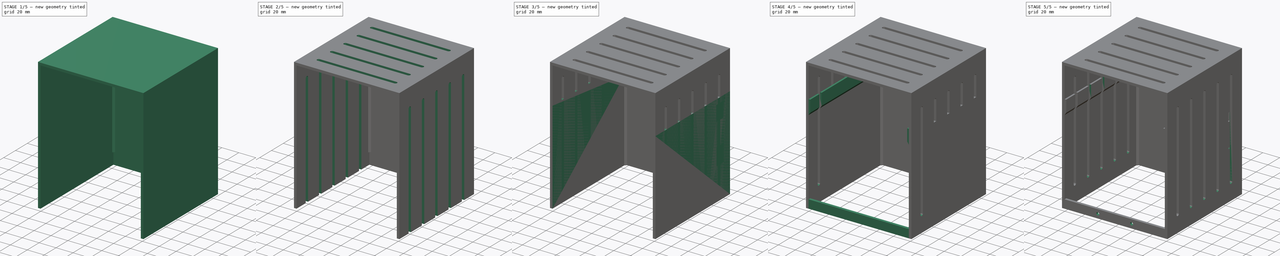
[diagram: build sequence overview — one tinted view per stage of 5, left to right]
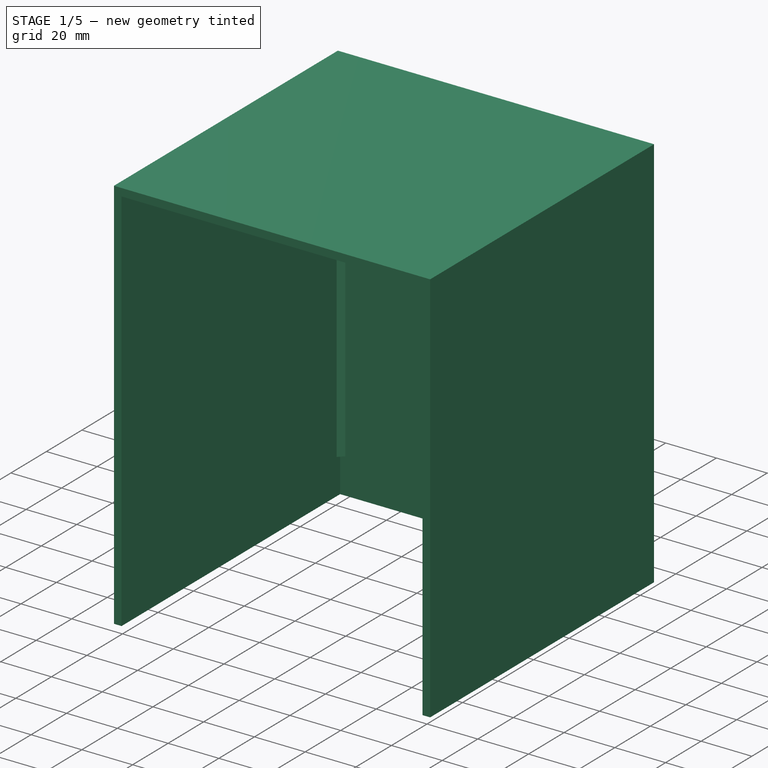
[diagram: stage 1 of 5 — iso view after this stage's code; geometry added in this stage tinted green]
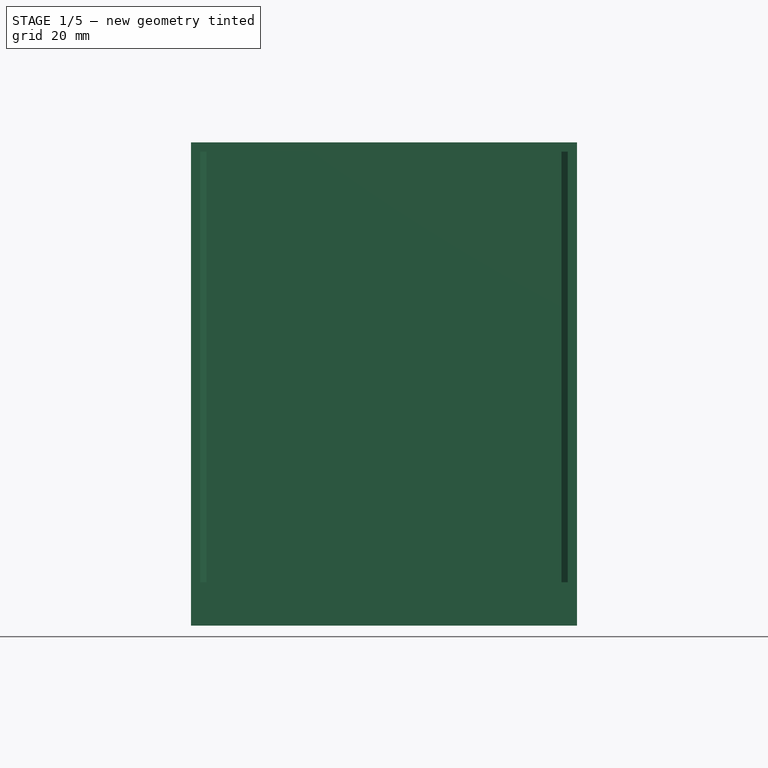
[diagram: stage 1 of 5 — front view after this stage's code; geometry added in this stage tinted green]
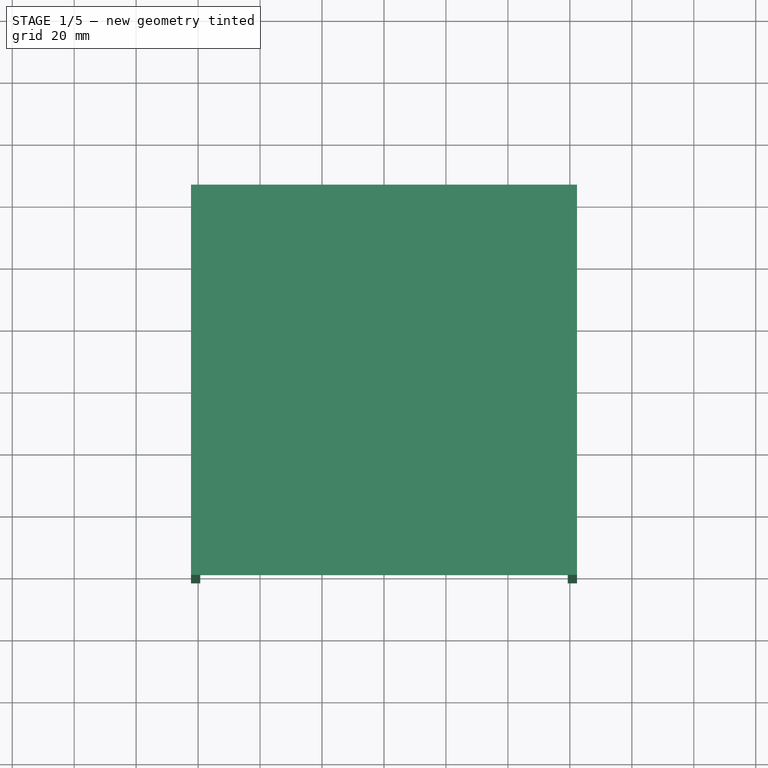
[diagram: stage 1 of 5 — top view after this stage's code; geometry added in this stage tinted green]
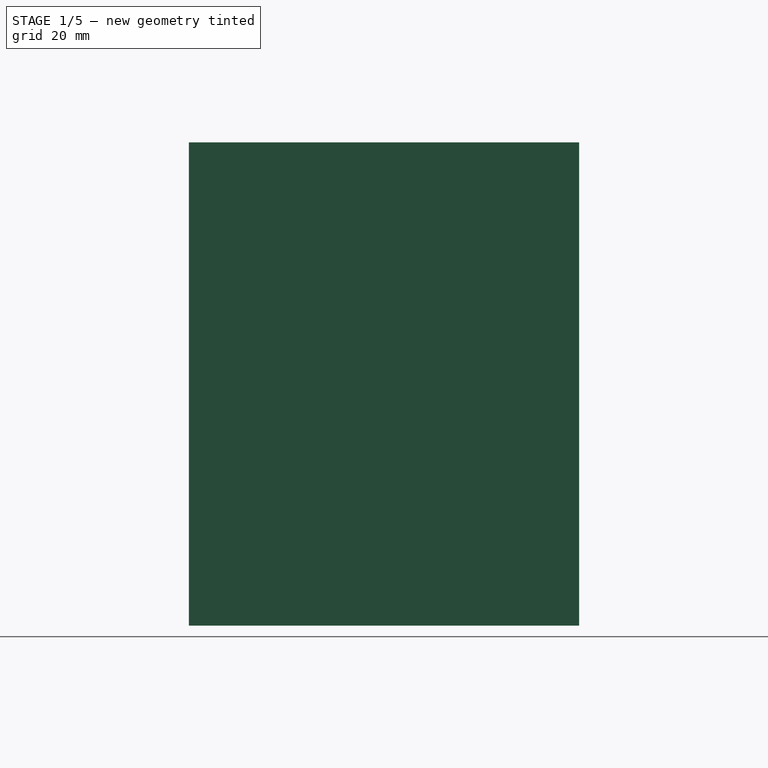
[diagram: stage 1 of 5 — right view after this stage's code; geometry added in this stage tinted green]
FCSTD DOCUMENT  (FreeCAD 1.0R39109 (Git))
Label: CaseCover
License: All rights reserved
LicenseURL: http://en.wikipedia.org/wiki/All_rights_reserved
objects: Sketcher::SketchObject×15, PartDesign::Pocket×8, PartDesign::Pad×7, PartDesign::Plane×6, PartDesign::LinearPattern×3, PartDesign::Mirrored×2, PartDesign::Body×2, App::Link×1, App::Part×1
note: 93 computed .brp shape members not serialized (recipe doc carries the construction recipe); baked Part::Feature solids carry a one-line shape summary decoded from their .brp
EXTERNAL_REF file=../Master Document.FCStd obj=Spreadsheet

FEATURE [Sketcher::SketchObject] Sketch006  label="Upper Case Wall Base Sketch"
  ArcFitTolerance = 1e-06
  AttachmentSupport = -> [XY_Plane002]
  FullyConstrained = true
  MakeInternals = false
  MapMode = 5
  expr: Constraints[16] = <<Monitor Chassis Parameters>>.GSCaseWallThickness
  expr: Constraints[17] = <<Monitor Chassis Parameters>>.GSCaseWallThickness
  expr: Constraints[18] = <<Monitor Chassis Parameters>>.GSCaseWallThickness
  expr: Constraints[5] = <<Monitor Chassis Parameters>>.GSCaseWallInnerDepth
  expr: Constraints[7] = 0.5 * <<Monitor Chassis Parameters>>.GSCaseWallInnerDepth
  expr: Constraints[8] = 0.5 * <<Monitor Chassis Parameters>>.GSCaseWallInnerWidth
  expr: Constraints[9] = <<Monitor Chassis Parameters>>.GSCaseWallInnerWidth
  sketch-geometry (8):
    g0: LineSegment StartX=62.3 StartY=64.5 StartZ=0 EndX=-62.3 EndY=64.5 EndZ=0
    g1: LineSegment StartX=-62.3 StartY=-61.5 StartZ=0 EndX=-59.3 EndY=-61.5 EndZ=0
    g2: LineSegment StartX=-59.3 StartY=-61.5 StartZ=0 EndX=-59.3 EndY=61.5 EndZ=0
    g3: LineSegment StartX=59.3 StartY=61.5 StartZ=0 EndX=59.3 EndY=-61.5 EndZ=0
    g4: LineSegment StartX=-62.3 StartY=64.5 StartZ=0 EndX=-62.3 EndY=-61.5 EndZ=0
    g5: LineSegment StartX=-59.3 StartY=61.5 StartZ=0 EndX=59.3 EndY=61.5 EndZ=0
    g6: LineSegment StartX=62.3 StartY=64.5 StartZ=0 EndX=62.3 EndY=-61.5 EndZ=0
    g7: LineSegment StartX=59.3 StartY=-61.5 StartZ=0 EndX=62.3 EndY=-61.5 EndZ=0
  constraints (24):
    c: Horizontal(g0)
    c: Coincident(g1,g2)
    c: Vertical(g2)
    c: Horizontal(g1)
    c: Vertical(g3)
    c: DistanceY(g1,g2) = 123
    c: Horizontal(g1,g3)
    c: DistanceY(g-1,g3) = 61.5
    c: DistanceX(g2,g-1) = 59.3
    c: DistanceX(g2,g3) = 118.6
    c: Coincident(g4,g0)
    c: Coincident(g4,g1)
    c: Vertical(g4)
    c: Coincident(g5,g2)
    c: Coincident(g5,g3)
    c: Horizontal(g5)
    c: DistanceX(g0,g2) = 3
    c: DistanceY(g2,g0) = 3
    c: DistanceX(g3,g0) = 3
    c: Coincident(g6,g0)
    c: Vertical(g6)
    c: Coincident(g7,g3)
    c: Coincident(g7,g6)
    c: Horizontal(g3,g6)
FEATURE [PartDesign::Pad] Pad004  label="Upper Case Wall Base Pad"
  Direction = (0,0,1)
  Length = 153
  Length2 = 10
  Profile = -> Sketch006
  ReferenceAxis = -> Sketch006 [N_Axis]
  Suppressed = false
  Type = 0
  expr: Length = <<Monitor Chassis Parameters>>.GSUpperCaseHeight
FEATURE [PartDesign::Plane] DatumPlane002  label="Case Top DatumPlane"
  AttachmentOffset = pos=(0,0,153) rot=(0,0,1;0rad)
  AttachmentSupport = -> [XY_Plane002]
  Length = 149.66
  MapMode = 5
  Placement = pos=(0,0,153) rot=(0,0,1;0rad)
  ResizeMode = 0
  Width = 151.06
  expr: .AttachmentOffset.Base.z = <<Monitor Chassis Parameters>>.GSUpperCaseHeight
FEATURE [Sketcher::SketchObject] Sketch007  label="Case Cover Top Sketch"
  ArcFitTolerance = 1e-06
  AttachmentSupport = -> [DatumPlane002]
  FullyConstrained = true
  MakeInternals = false
  MapMode = 5
  Placement = pos=(0,0,153) rot=(0,0,1;0rad)
  expr: Constraints[10] = <<Monitor Chassis Parameters>>.GSCaseWallInnerDepth + <<Monitor Chassis Parameters>>.GSCaseWallThickness
  expr: Constraints[11] = 0.5 * (<<Monitor Chassis Parameters>>.GSCaseWallInnerDepth + 2 * <<Monitor Chassis Parameters>>.GSCaseWallThickness)
  expr: Constraints[8] = <<Monitor Chassis Parameters>>.GSCaseWallInnerWidth + 2 * <<Monitor Chassis Parameters>>.GSCaseWallThickness
  expr: Constraints[9] = 0.5 * <<Monitor Chassis Parameters>>.GSCaseWallInnerWidth + <<Monitor Chassis Parameters>>.GSCaseWallThickness
  sketch-geometry (4):
    g0: LineSegment StartX=-62.3 StartY=64.5 StartZ=0 EndX=-62.3 EndY=-61.5 EndZ=0
    g1: LineSegment StartX=-62.3 StartY=-61.5 StartZ=0 EndX=62.3 EndY=-61.5 EndZ=0
    g2: LineSegment StartX=62.3 StartY=-61.5 StartZ=0 EndX=62.3 EndY=64.5 EndZ=0
    g3: LineSegment StartX=62.3 StartY=64.5 StartZ=0 EndX=-62.3 EndY=64.5 EndZ=0
  constraints (12):
    c: Coincident(g0,g1)
    c: Coincident(g1,g2)
    c: Coincident(g2,g3)
    c: Coincident(g3,g0)
    c: Vertical(g0)
    c: Vertical(g2)
    c: Horizontal(g1)
    c: Horizontal(g3)
    c: DistanceX(g0,g2) = 124.6
    c: DistanceX(g0,g-1) = 62.3
    c: DistanceY(g0,g0) = 126
    c: DistanceY(g-1,g0) = 64.5
FEATURE [Sketcher::SketchObject] Sketch008  label="Left Upper Case Corner Gusset Sketch"
  ArcFitTolerance = 1e-06
  AttachmentSupport = -> [DatumPlane002]
  FullyConstrained = true
  MakeInternals = false
  MapMode = 5
  Placement = pos=(0,0,153) rot=(0,0,1;0rad)
  expr: Constraints[6] = 0.5 * <<Monitor Chassis Parameters>>.GSCaseWallInnerWidth
  expr: Constraints[7] = 0.5 * <<Monitor Chassis Parameters>>.GSCaseWallInnerDepth
  sketch-geometry (3):
    g0: LineSegment StartX=-59.3 StartY=59.5 StartZ=0 EndX=-57.3 EndY=61.5 EndZ=0
    g1: LineSegment StartX=-57.3 StartY=61.5 StartZ=0 EndX=-59.3 EndY=61.5 EndZ=0
    g2: LineSegment StartX=-59.3 StartY=61.5 StartZ=0 EndX=-59.3 EndY=59.5 EndZ=0
  constraints (9):
    c: Coincident(g1,g0)
    c: Horizontal(g1)
    c: Coincident(g2,g1)
    c: Coincident(g2,g0)
    c: Vertical(g2)
    c: Angle(g0) = 0.785398
    c: DistanceX(g1,g-1) = 59.3
    c: DistanceY(g-1,g1) = 61.5
    c: DistanceY(g0,g1) = 2
FEATURE [PartDesign::Pad] Pad005  label="Left Upper Case Corner Gusset Pad"
  BaseFeature = -> Pad004
  Direction = (0,0,1)
  Length = 139
  Length2 = 10
  Profile = -> Sketch008
  ReferenceAxis = -> Sketch008 [N_Axis]
  Reversed = true
  Suppressed = false
  Type = 0
  expr: Length = <<Monitor Chassis Parameters>>.GSUpperCaseHeight - <<Monitor Chassis Parameters>>.GSCaseConnectionWallHeight
FEATURE [PartDesign::Mirrored] Mirrored001  label="Right Upper Case Corner Gusset Mirrored"
  BaseFeature = -> Pad005
  MirrorPlane = -> Sketch008 [V_Axis]
  Originals = -> [Pad005]
  Suppressed = false
  TransformMode = 0
FEATURE [PartDesign::Pad] Pad006  label="Case Cover Top Pad"
  BaseFeature = -> Mirrored001
  Direction = (0,0,1)
  Length = 3
  Length2 = 10
  Profile = -> Sketch007
  ReferenceAxis = -> Sketch007 [N_Axis]
  Suppressed = false
  Type = 0
  expr: Length = <<Monitor Chassis Parameters>>.GSCaseWallThickness
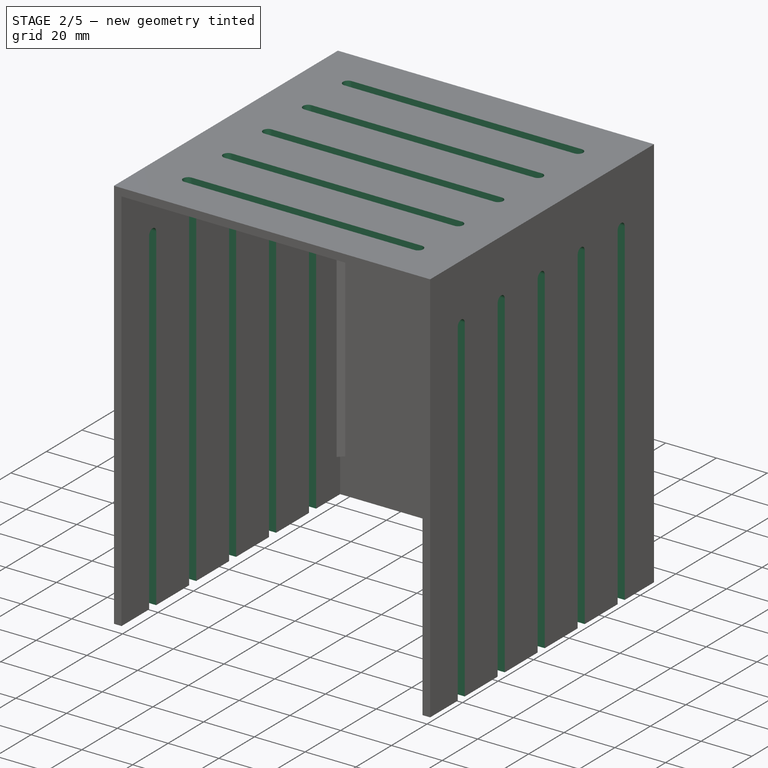
[diagram: stage 2 of 5 — iso view after this stage's code; geometry added in this stage tinted green]
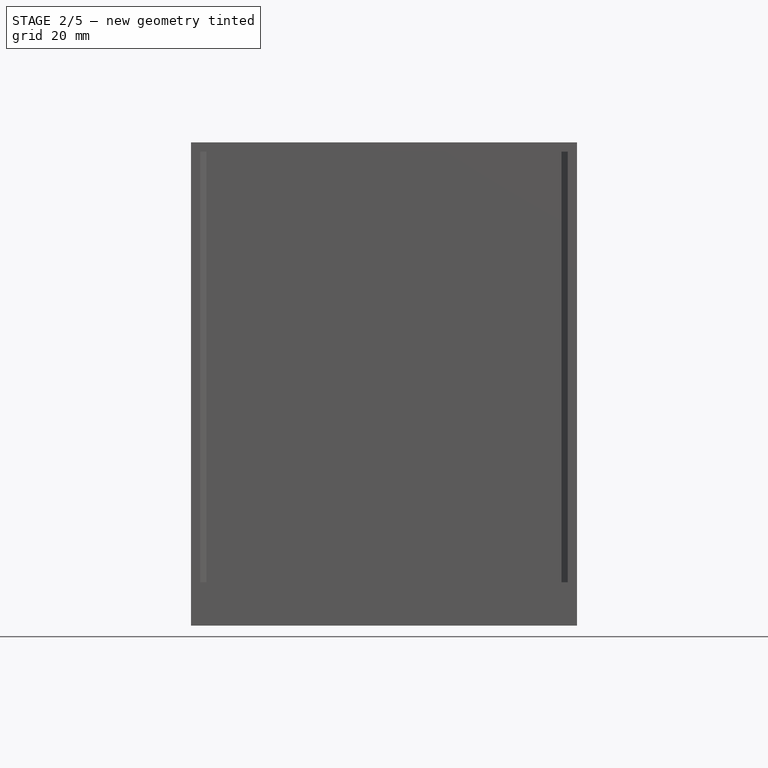
[diagram: stage 2 of 5 — front view after this stage's code; geometry added in this stage tinted green]
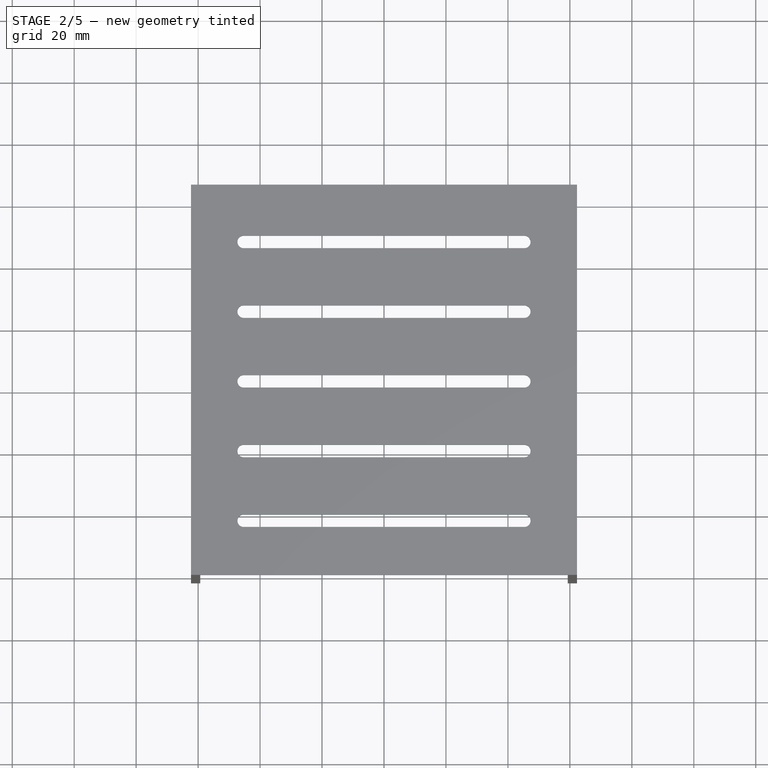
[diagram: stage 2 of 5 — top view after this stage's code; geometry added in this stage tinted green]
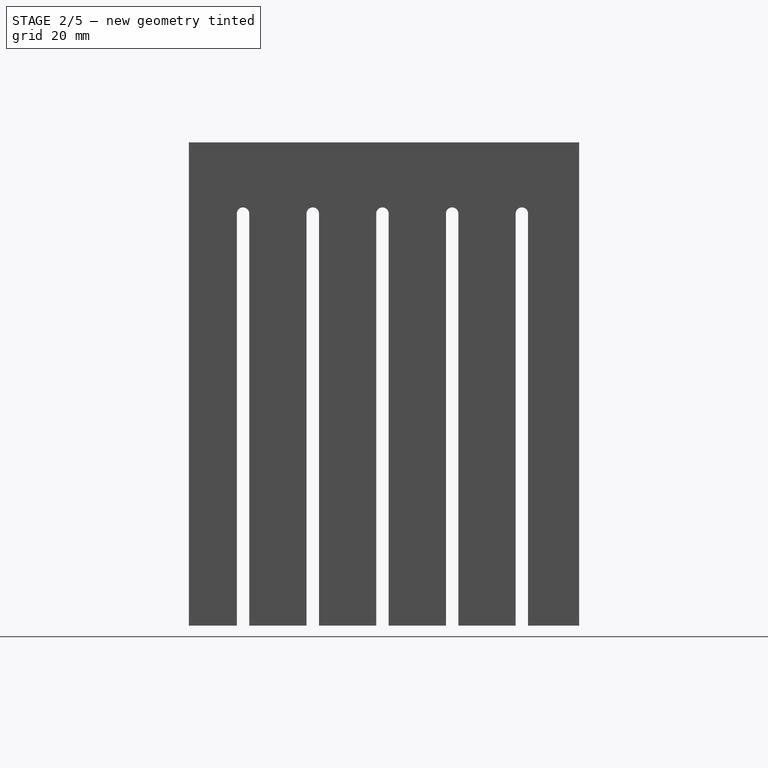
[diagram: stage 2 of 5 — right view after this stage's code; geometry added in this stage tinted green]
FEATURE [PartDesign::Plane] DatumPlane004  label="Upper Cover Right Side DatumPlane"
  AttachmentOffset = pos=(0,0,62.3) rot=(0,0,1;0rad)
  AttachmentSupport = -> [YZ_Plane002]
  Length = 161.319
  MapMode = 5
  Placement = pos=(62.3,0,0) rot=(0.57735,0.57735,0.57735;2.0944rad)
  ResizeMode = 0
  Width = 282.833
  expr: .AttachmentOffset.Base.z = 0.5 * <<Monitor Chassis Parameters>>.GSCaseWallInnerWidth + <<Monitor Chassis Parameters>>.GSCaseWallThickness
FEATURE [Sketcher::SketchObject] Sketch010  label="Upper Cover Cooling Slot Base Sketch"
  ArcFitTolerance = 1e-06
  AttachmentSupport = -> [DatumPlane004]
  FullyConstrained = false
  MakeInternals = false
  MapMode = 5
  Placement = pos=(62.3,0,0) rot=(0.57735,0.57735,0.57735;2.0944rad)
  expr: Constraints[12] = <<Monitor Chassis Parameters>>.GSTowerSideCoolingSlotOffsetFromEdge
  expr: Constraints[4] = <<Monitor Chassis Parameters>>.GSUpperCaseHeight - <<Monitor Chassis Parameters>>.GSTowerCoolingSlotEndOffset
  expr: Constraints[5] = <<Monitor Chassis Parameters>>.GSTowerCoolingSlotWidth
  sketch-geometry (4):
    g0: LineSegment StartX=-46 StartY=-89.5276 StartZ=0 EndX=-46 EndY=133 EndZ=0
    g1: LineSegment StartX=-42 StartY=133 StartZ=0 EndX=-42 EndY=-89.5276 EndZ=0
    g2: ArcOfCircle CenterX=-44 CenterY=-89.5276 CenterZ=0 NormalX=0 NormalY=0 NormalZ=1 AngleXU=0 Radius=2 StartAngle=3.14159 EndAngle=6.28319
    g3: ArcOfCircle CenterX=-44 CenterY=133 CenterZ=0 NormalX=0 NormalY=0 NormalZ=1 AngleXU=0 Radius=2 StartAngle=0 EndAngle=3.14159
  constraints (13):
    c: Vertical(g0)
    c: Vertical(g1)
    c: Horizontal(g0,g1)
    c: Horizontal(g1,g0)
    c: DistanceY(g-1,g1) = 133
    c: DistanceX(g0,g1) = 4
    c: Coincident(g2,g0)
    c: Coincident(g2,g1)
    c: Horizontal(g2,g1)
    c: Coincident(g3,g0)
    c: Coincident(g3,g1)
    c: Horizontal(g3,g1)
    c: DistanceX(g1,g-1) = 42
FEATURE [PartDesign::Pocket] Pocket002  label="Upper Cover Cooling Slot Base Pocket"
  BaseFeature = -> Pad006
  Direction = (-1,0,0)
  Length = 5
  Length2 = 5
  Profile = -> Sketch010
  ReferenceAxis = -> Sketch010 [N_Axis]
  Suppressed = false
  Type = 1
FEATURE [PartDesign::LinearPattern] LinearPattern001  label="Upper Cover Cooling Slot Base LinearPattern"
  BaseFeature = -> Pocket002
  Direction = -> Sketch010 [H_Axis]
  Length = 90
  Mode = 0
  Occurrences = 5
  Offset = 22.5
  Originals = -> [Pocket002]
  Suppressed = false
  TransformMode = 0
FEATURE [Sketcher::SketchObject] Sketch011  label="Tower Top Cooling Slots Sketch"
  ArcFitTolerance = 1e-06
  AttachmentSupport = -> [Pad006]
  FullyConstrained = true
  MakeInternals = false
  MapMode = 5
  Placement = pos=(0,0,156) rot=(0,0,1;0rad)
  expr: Constraints[10] = 0.5 * <<Monitor Chassis Parameters>>.GSCaseWallInnerWidth - <<Monitor Chassis Parameters>>.GSTowerTopCoolingSlotOffsetFromEdge
  expr: Constraints[11] = 0.5 * <<Monitor Chassis Parameters>>.GSCaseWallInnerWidth - <<Monitor Chassis Parameters>>.GSTowerTopCoolingSlotOffsetFromEdge
  expr: Constraints[12] = <<Monitor Chassis Parameters>>.GSTowerCoolingSlotWidth
  expr: Constraints[13] = <<Monitor Chassis Parameters>>.GSTowerSideCoolingSlotOffsetFromEdge
  sketch-geometry (4):
    g0: LineSegment StartX=-45.3 StartY=-42 StartZ=0 EndX=45.3 EndY=-42 EndZ=0
    g1: LineSegment StartX=45.3 StartY=-46 StartZ=0 EndX=-45.3 EndY=-46 EndZ=0
    g2: ArcOfCircle CenterX=-45.3 CenterY=-44 CenterZ=0 NormalX=0 NormalY=0 NormalZ=1 AngleXU=0 Radius=2 StartAngle=1.5708 EndAngle=4.71239
    g3: ArcOfCircle CenterX=45.3 CenterY=-44 CenterZ=0 NormalX=0 NormalY=0 NormalZ=1 AngleXU=0 Radius=2 StartAngle=4.71239 EndAngle=7.85398
  constraints (14):
    c: Horizontal(g0)
    c: Horizontal(g1)
    c: Vertical(g0,g1)
    c: Vertical(g0,g1)
    c: Coincident(g2,g0)
    c: Coincident(g2,g1)
    c: Coincident(g3,g0)
    c: Coincident(g3,g1)
    c: Vertical(g0,g3)
    c: Vertical(g0,g2)
    c: DistanceX(g-1,g1) = 45.3
    c: DistanceX(g0,g-1) = 45.3
    c: DistanceY(g1,g0) = 4
    c: DistanceY(g0,g-1) = 42
FEATURE [PartDesign::Pocket] Pocket003  label="Case Top Cooling Slots Pocket"
  BaseFeature = -> LinearPattern001
  Direction = (0,0,-1)
  Length = 4
  Length2 = 5
  Profile = -> Sketch011
  ReferenceAxis = -> Sketch011 [N_Axis]
  Suppressed = false
  Type = 0
  expr: Length = <<Monitor Chassis Parameters>>.GSTowerFloorThickness
FEATURE [PartDesign::LinearPattern] LinearPattern002  label="Case Top Cooling Slots LinearPattern"
  BaseFeature = -> Pocket003
  Direction = -> Y_Axis002
  Length = 90
  Mode = 0
  Occurrences = 5
  Offset = 22.5
  Originals = -> [Pocket003]
  Suppressed = false
  TransformMode = 0
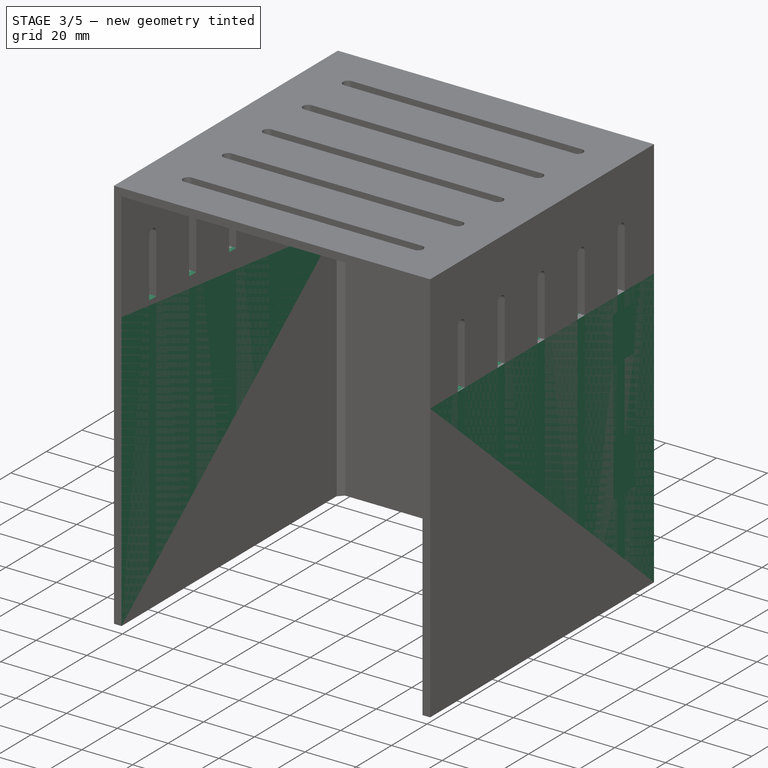
[diagram: stage 3 of 5 — iso view after this stage's code; geometry added in this stage tinted green]
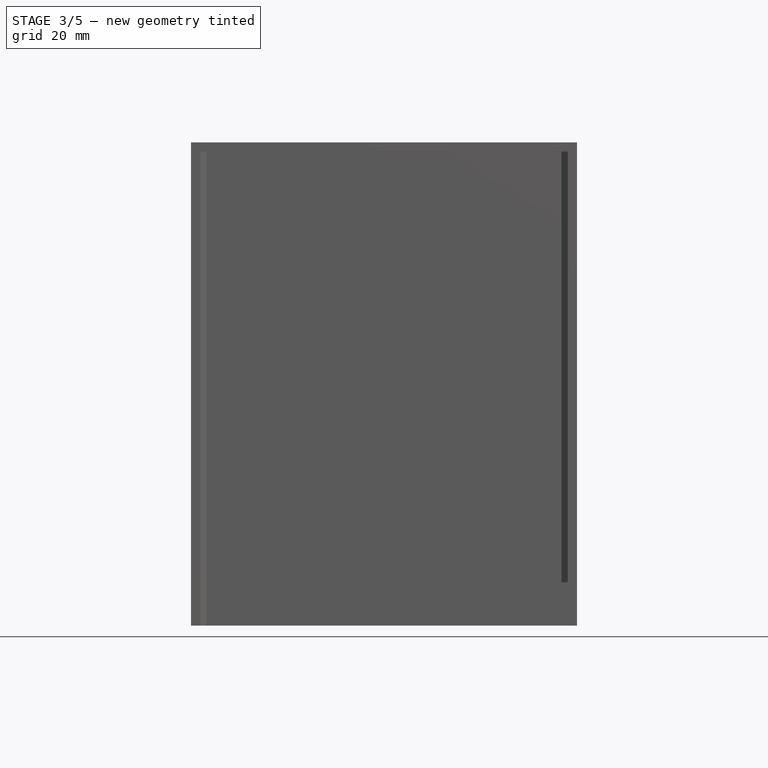
[diagram: stage 3 of 5 — front view after this stage's code; geometry added in this stage tinted green]
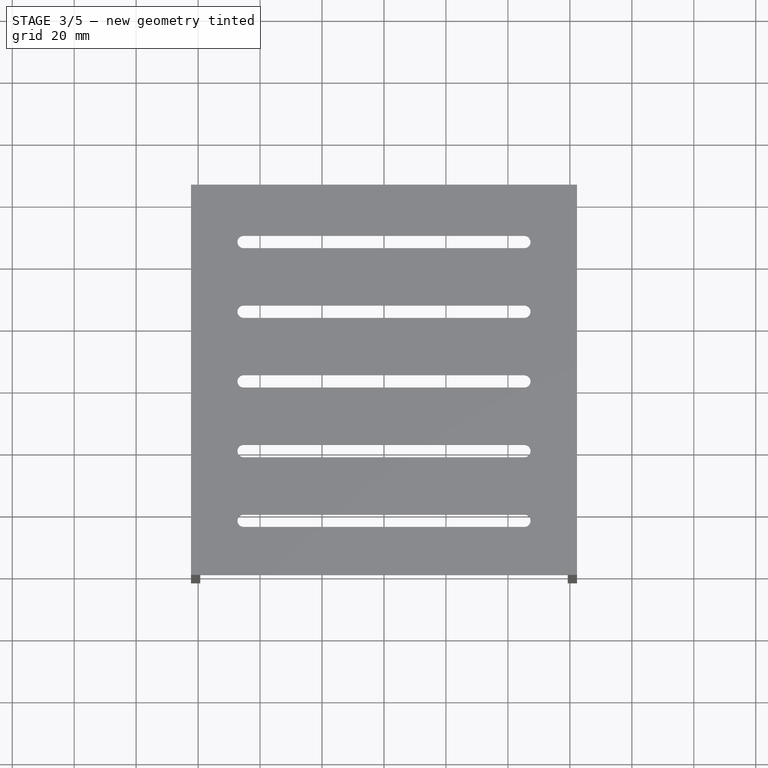
[diagram: stage 3 of 5 — top view after this stage's code; geometry added in this stage tinted green]
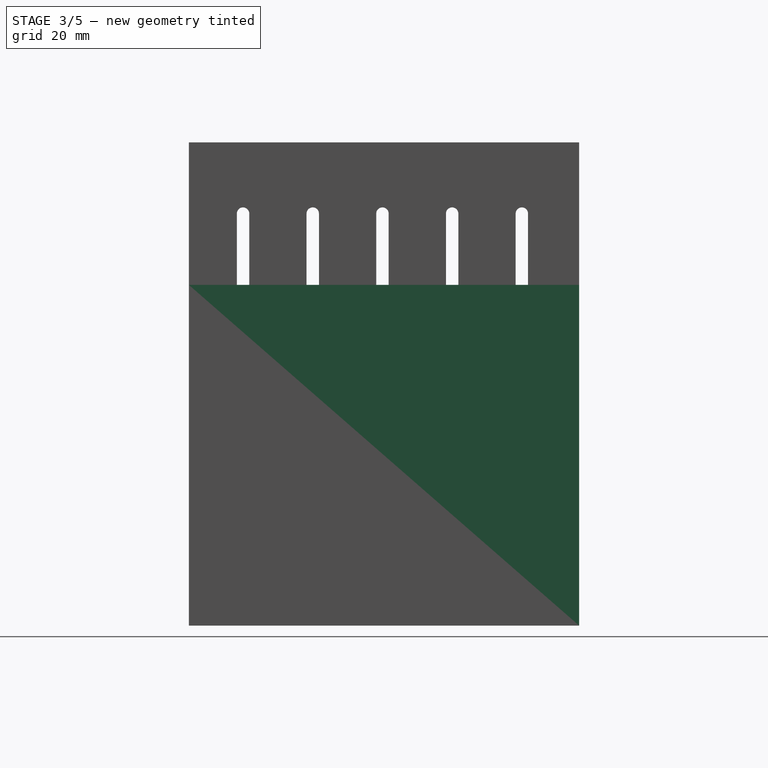
[diagram: stage 3 of 5 — right view after this stage's code; geometry added in this stage tinted green]
FEATURE [App::Link] Link  label="Monitor Chassis Parameters"
  LinkedObject = -> <external ../Master Document.FCStd>#Spreadsheet
FEATURE [Sketcher::SketchObject] Sketch  label="Lower Case Wall Base Sketch"
  ArcFitTolerance = 1e-06
  AttachmentSupport = -> [XY_Plane001]
  FullyConstrained = true
  MakeInternals = false
  MapMode = 5
  expr: Constraints[11] = 0.5 * <<Monitor Chassis Parameters>>.GSCaseWallInnerDepth
  expr: Constraints[12] = <<Monitor Chassis Parameters>>.GSCaseWallInnerWidth
  expr: Constraints[13] = <<Monitor Chassis Parameters>>.GSCaseWallThickness
  expr: Constraints[14] = 0.5 * <<Monitor Chassis Parameters>>.GSCaseWallInnerWidth
  expr: Constraints[23] = <<Monitor Chassis Parameters>>.GSCaseWallThickness
  expr: Constraints[24] = <<Monitor Chassis Parameters>>.GSCaseWallThickness
  expr: Constraints[9] = <<Monitor Chassis Parameters>>.GSCaseWallInnerDepth
  sketch-geometry (8):
    g0: LineSegment StartX=62.3 StartY=64.5 StartZ=0 EndX=-62.3 EndY=64.5 EndZ=0
    g1: LineSegment StartX=-62.3 StartY=64.5 StartZ=0 EndX=-62.3 EndY=-61.5 EndZ=0
    g2: LineSegment StartX=-62.3 StartY=-61.5 StartZ=0 EndX=-59.3 EndY=-61.5 EndZ=0
    g3: LineSegment StartX=-59.3 StartY=-61.5 StartZ=0 EndX=-59.3 EndY=61.5 EndZ=0
    g4: LineSegment StartX=59.3 StartY=61.5 StartZ=0 EndX=59.3 EndY=-61.5 EndZ=0
    g5: LineSegment StartX=59.3 StartY=-61.5 StartZ=0 EndX=62.3 EndY=-61.5 EndZ=0
    g6: LineSegment StartX=-59.3 StartY=61.5 StartZ=0 EndX=59.3 EndY=61.5 EndZ=0
    g7: LineSegment StartX=62.3 StartY=-61.5 StartZ=0 EndX=62.3 EndY=64.5 EndZ=0
  constraints (26):
    c: Horizontal(g0)
    c: Coincident(g1,g2)
    c: Coincident(g2,g3)
    c: Vertical(g1)
    c: Vertical(g3)
    c: Horizontal(g2)
    c: Coincident(g4,g5)
    c: Horizontal(g5)
    c: Vertical(g4)
    c: DistanceY(g2,g3) = 123
    c: Horizontal(g2,g4)
    c: DistanceY(g-1,g4) = 61.5
    c: DistanceX(g3,g4) = 118.6
    c: DistanceX(g0,g3) = 3
    c: DistanceX(g-1,g4) = 59.3
    c: Vertical(g0,g1)
    c: Horizontal(g0,g1)
    c: Coincident(g6,g3)
    c: Coincident(g6,g4)
    c: Horizontal(g6)
    c: PointOnObject(g7,g5)
    c: Coincident(g7,g0)
    c: Vertical(g7)
    c: DistanceY(g4,g0) = 3
    c: DistanceX(g4,g0) = 3
    c: Vertical(g7,g5)
FEATURE [PartDesign::Pad] Pad  label="Lower Case Wall Base Pad"
  Direction = (0,0,1)
  Length = 110
  Length2 = 10
  Profile = -> Sketch
  ReferenceAxis = -> Sketch [N_Axis]
  Suppressed = false
  Type = 0
  expr: Length = <<Monitor Chassis Parameters>>.GSLowerCaseHeight
FEATURE [Sketcher::SketchObject] Sketch001  label="Left Lower Case Corner Gusset Sketch"
  ArcFitTolerance = 1e-06
  AttachmentSupport = -> [XY_Plane001]
  FullyConstrained = true
  MakeInternals = false
  MapMode = 5
  expr: Constraints[6] = 0.5 * <<Monitor Chassis Parameters>>.GSCaseWallInnerWidth
  expr: Constraints[7] = 0.5 * <<Monitor Chassis Parameters>>.GSCaseWallInnerDepth
  expr: Constraints[8] = <<Monitor Chassis Parameters>>.GSCaseWallCornerGussetLength
  sketch-geometry (3):
    g0: LineSegment StartX=-59.3 StartY=59.5 StartZ=0 EndX=-57.3 EndY=61.5 EndZ=0
    g1: LineSegment StartX=-57.3 StartY=61.5 StartZ=0 EndX=-59.3 EndY=61.5 EndZ=0
    g2: LineSegment StartX=-59.3 StartY=61.5 StartZ=0 EndX=-59.3 EndY=59.5 EndZ=0
  constraints (9):
    c: Coincident(g1,g0)
    c: Horizontal(g1)
    c: Coincident(g2,g1)
    c: Coincident(g2,g0)
    c: Vertical(g2)
    c: Angle(g0) = 0.785398
    c: DistanceX(g1,g-1) = 59.3
    c: DistanceY(g-1,g1) = 61.5
    c: DistanceY(g0,g1) = 2
FEATURE [PartDesign::Pad] Pad001  label="Left Lower Case Corner Gusset Pad"
  BaseFeature = -> Pad
  Direction = (0,0,1)
  Length = 96
  Length2 = 10
  Profile = -> Sketch001
  ReferenceAxis = -> Sketch001 [N_Axis]
  Suppressed = false
  Type = 0
  expr: Length = <<Monitor Chassis Parameters>>.GSLowerCaseHeight - <<Monitor Chassis Parameters>>.GSCaseConnectionWallHeight
FEATURE [PartDesign::Body] Body  label="Lower Case Cover Body"
  AllowCompound = false
  Group = -> [Sketch,Pad,Sketch001,Pad001,Mirrored,DatumPlane,DatumPlane001,Sketch003,Pad002,Sketch004,Pad003,DatumPlane003,Sketch009,Pocket001,LinearPattern,Sketch012,Pocket,Sketch013,Pocket004,Sketch014,Pocket005]
  Origin = -> Origin001
  Placement = pos=(1.4,0,0) rot=(0,0,1;0rad)
  Tip = -> Pocket005
FEATURE [PartDesign::Plane] DatumPlane005  label="Case Top Back DatumPlane"
  AttachmentOffset = pos=(0,0,-64.5) rot=(0,0,1;0rad)
  AttachmentSupport = -> [XZ_Plane002]
  Length = 159.723
  MapMode = 5
  Placement = pos=(0,64.5,-1.43e-14) rot=(1,0,0;1.5708rad)
  ResizeMode = 0
  Width = 282.636
  expr: .AttachmentOffset.Base.z = -(0.5 * <<Monitor Chassis Parameters>>.GSCaseWallInnerDepth + <<Monitor Chassis Parameters>>.GSCaseWallThickness)
FEATURE [Sketcher::SketchObject] Sketch015  label="Case Top Back Access Holes Sketch"
  ArcFitTolerance = 1e-06
  AttachmentSupport = -> [DatumPlane005]
  FullyConstrained = false
  MakeInternals = false
  MapMode = 5
  Placement = pos=(0,64.5,-1.43e-14) rot=(1,0,0;1.5708rad)
  sketch-geometry (1):
    g0: Circle CenterX=-45.0354 CenterY=71.0638 CenterZ=0 NormalX=0 NormalY=0 NormalZ=1 AngleXU=0 Radius=2
  constraints (1):
    c: Diameter(g0) = 4
FEATURE [PartDesign::Pocket] Pocket006  label="Case Top Back Access Holes Pocket"
  BaseFeature = -> LinearPattern002
  Direction = (0,1,-2e-16)
  Length = 5
  Length2 = 5
  Profile = -> Sketch015
  ReferenceAxis = -> Sketch015 [N_Axis]
  Suppressed = false
  Type = 0
FEATURE [Sketcher::SketchObject] Sketch016  label="Case Top Right Side Access Holes Sketch"
  ArcFitTolerance = 1e-06
  AttachmentSupport = -> [DatumPlane004]
  FullyConstrained = false
  MakeInternals = false
  MapMode = 5
  Placement = pos=(62.3,0,0) rot=(0.57735,0.57735,0.57735;2.0944rad)
  sketch-geometry (8):
    g0: LineSegment StartX=41.6164 StartY=58.5839 StartZ=0 EndX=41.6164 EndY=38.2414 EndZ=0
    g1: LineSegment StartX=41.6164 StartY=38.2414 StartZ=0 EndX=53.9113 EndY=38.2414 EndZ=0
    g2: LineSegment StartX=53.9113 StartY=38.2414 StartZ=0 EndX=53.9113 EndY=58.5839 EndZ=0
    g3: LineSegment StartX=53.9113 StartY=58.5839 StartZ=0 EndX=41.6164 EndY=58.5839 EndZ=0
    g4: LineSegment StartX=41.1693 StartY=103.963 StartZ=0 EndX=41.1693 EndY=85.8562 EndZ=0
    g5: LineSegment StartX=41.1693 StartY=85.8562 StartZ=0 EndX=53.2407 EndY=85.8562 EndZ=0
    g6: LineSegment StartX=53.2407 StartY=85.8562 StartZ=0 EndX=53.2407 EndY=103.963 EndZ=0
    g7: LineSegment StartX=53.2407 StartY=103.963 StartZ=0 EndX=41.1693 EndY=103.963 EndZ=0
  constraints (16):
    c: Coincident(g0,g1)
    c: Coincident(g1,g2)
    c: Coincident(g2,g3)
    c: Coincident(g3,g0)
    c: Vertical(g0)
    c: Vertical(g2)
    c: Horizontal(g1)
    c: Horizontal(g3)
    c: Coincident(g4,g5)
    c: Coincident(g5,g6)
    c: Coincident(g6,g7)
    c: Coincident(g7,g4)
    c: Vertical(g4)
    c: Vertical(g6)
    c: Horizontal(g5)
    c: Horizontal(g7)
FEATURE [PartDesign::Pocket] Pocket008  label="Case Top Right Side Access Holes Pocket"
  BaseFeature = -> Pocket006
  Direction = (-1,0,0)
  Length = 5
  Length2 = 5
  Profile = -> Sketch016
  ReferenceAxis = -> Sketch016 [N_Axis]
  Suppressed = false
  Type = 0
FEATURE [PartDesign::Body] Body001  label="Upper Case Cover Body"
  AllowCompound = false
  Group = -> [Sketch006,Pad004,DatumPlane002,Sketch007,Sketch008,Pad005,Mirrored001,Pad006,DatumPlane004,Sketch010,Pocket002,LinearPattern001,Sketch011,Pocket003,LinearPattern002,DatumPlane005,Sketch015,Pocket006,Sketch016,Pocket008]
  Origin = -> Origin002
  Placement = pos=(1.4,0,110.1) rot=(0,0,1;0rad)
  Tip = -> Pocket008
FEATURE [App::Part] Part  label="Case Cover Part"
  Group = -> [Body,Body001]
  Origin = -> Origin
  Placement = pos=(0.3,0,0) rot=(0,0,1;0rad)
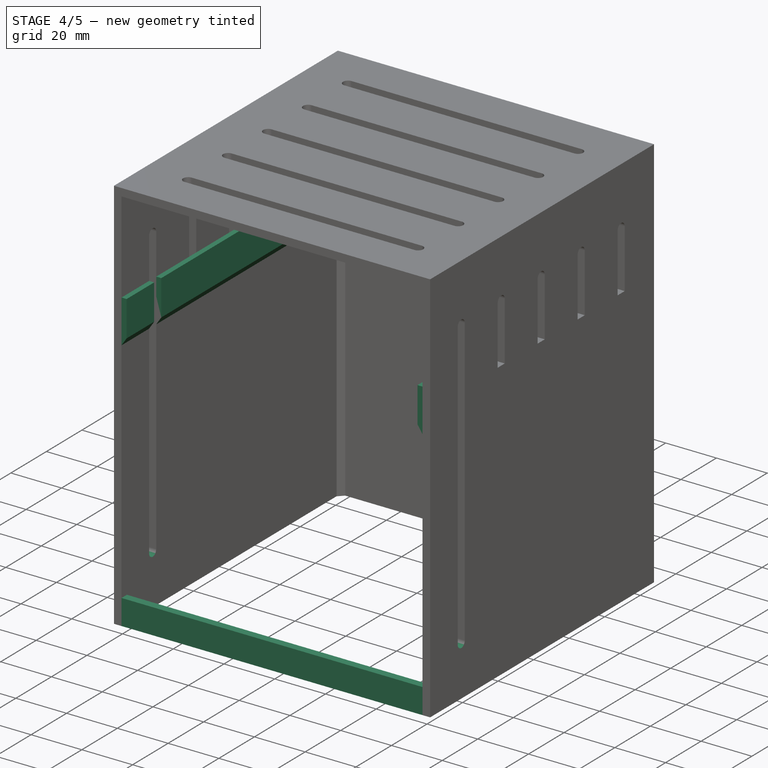
[diagram: stage 4 of 5 — iso view after this stage's code; geometry added in this stage tinted green]
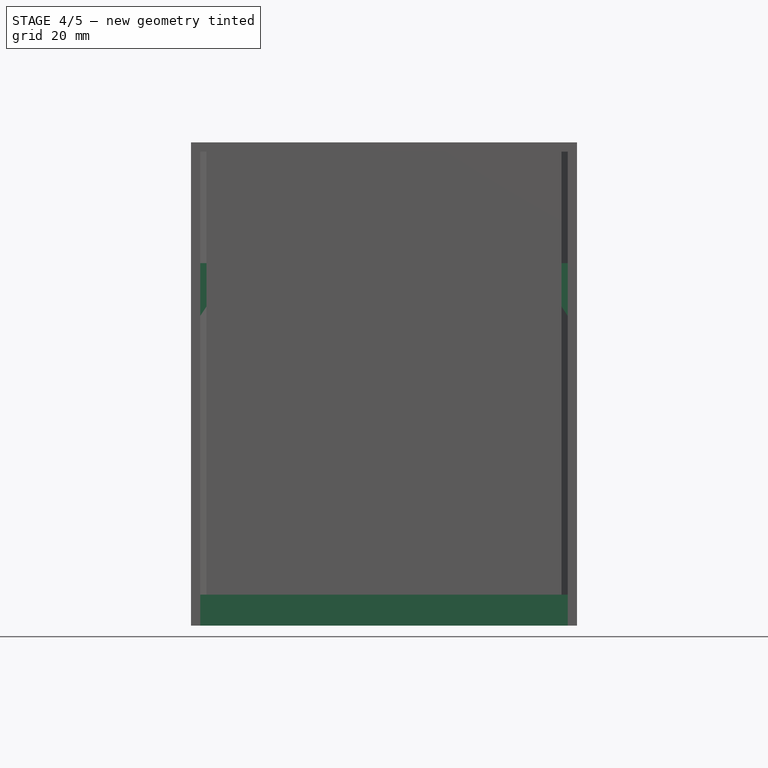
[diagram: stage 4 of 5 — front view after this stage's code; geometry added in this stage tinted green]
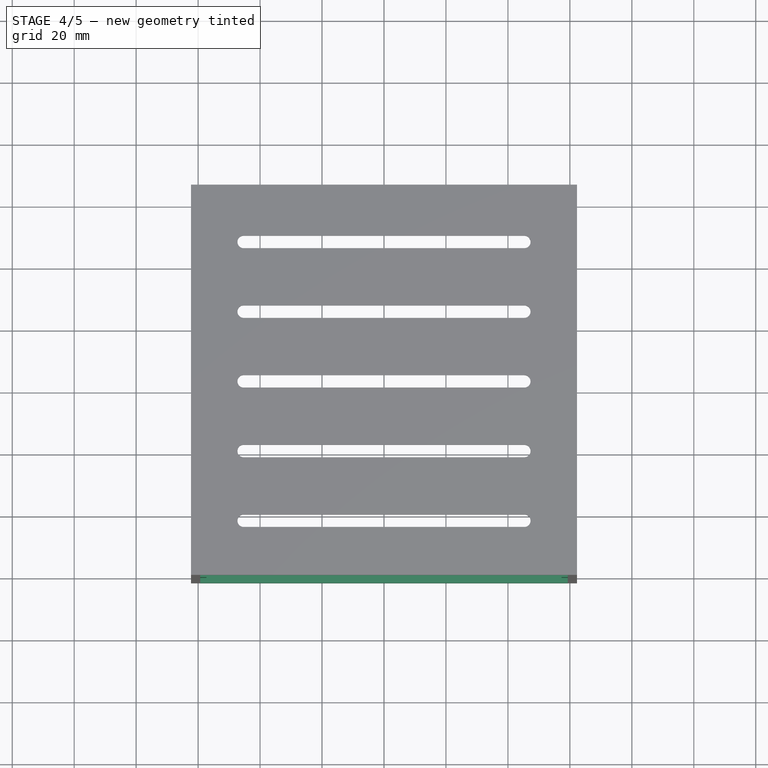
[diagram: stage 4 of 5 — top view after this stage's code; geometry added in this stage tinted green]
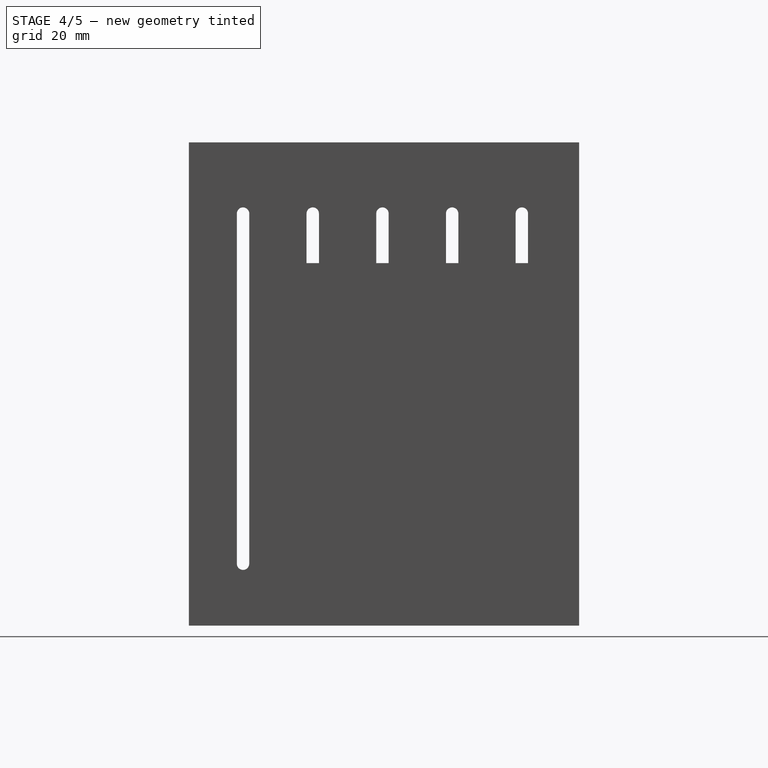
[diagram: stage 4 of 5 — right view after this stage's code; geometry added in this stage tinted green]
FEATURE [PartDesign::Mirrored] Mirrored  label="Right Lower Case Corner Gusset Mirror"
  BaseFeature = -> Pad001
  MirrorPlane = -> YZ_Plane001
  Originals = -> [Pad001]
  Suppressed = false
  TransformMode = 0
FEATURE [PartDesign::Plane] DatumPlane  label="Back of Cover DatumPlane"
  AttachmentOffset = pos=(0,0,-64.5) rot=(0,0,1;0rad)
  AttachmentSupport = -> [XZ_Plane001]
  Length = 60
  MapMode = 5
  Placement = pos=(0,64.5,-1.43e-14) rot=(1,0,0;1.5708rad)
  ResizeMode = 0
  Width = 60
  expr: .AttachmentOffset.Base.z = -(0.5 * <<Monitor Chassis Parameters>>.GSCaseWallInnerDepth + <<Monitor Chassis Parameters>>.GSCaseWallThickness)
FEATURE [PartDesign::Plane] DatumPlane001  label="Front of Cover DatumPlane"
  AttachmentOffset = pos=(0,0,61.5) rot=(0,0,1;0rad)
  AttachmentSupport = -> [XZ_Plane001]
  Length = 60
  MapMode = 5
  Placement = pos=(0,-61.5,1.37e-14) rot=(1,0,0;1.5708rad)
  ResizeMode = 0
  Width = 60
  expr: .AttachmentOffset.Base.z = 0.5 * <<Monitor Chassis Parameters>>.GSCaseWallInnerDepth
FEATURE [Sketcher::SketchObject] Sketch003  label="Cover Front Lower Crossbeam Sketch"
  ArcFitTolerance = 1e-06
  AttachmentSupport = -> [DatumPlane001]
  FullyConstrained = true
  MakeInternals = false
  MapMode = 5
  Placement = pos=(0,-61.5,1.37e-14) rot=(1,0,0;1.5708rad)
  expr: Constraints[10] = <<Monitor Chassis Parameters>>.GSCaseWallInnerWidth
  expr: Constraints[11] = 0.5 * <<Monitor Chassis Parameters>>.GSCaseWallInnerWidth
  sketch-geometry (4):
    g0: LineSegment StartX=59.3 StartY=10 StartZ=0 EndX=-59.3 EndY=10 EndZ=0
    g1: LineSegment StartX=-59.3 StartY=10 StartZ=0 EndX=-59.3 EndY=0 EndZ=0
    g2: LineSegment StartX=-59.3 StartY=0 StartZ=0 EndX=59.3 EndY=0 EndZ=0
    g3: LineSegment StartX=59.3 StartY=0 StartZ=0 EndX=59.3 EndY=10 EndZ=0
  constraints (12):
    c: Coincident(g0,g1)
    c: Coincident(g1,g2)
    c: Coincident(g2,g3)
    c: Coincident(g3,g0)
    c: Horizontal(g0)
    c: Horizontal(g2)
    c: Vertical(g1)
    c: Vertical(g3)
    c: Horizontal(g2,g-1)
    c: DistanceY(g2,g0) = 10
    c: DistanceX(g0,g0) = 118.6
    c: DistanceX(g-1,g2) = 59.3
FEATURE [PartDesign::Pad] Pad002  label="Cover Front Lower Crossbeam Pad"
  BaseFeature = -> Mirrored
  Direction = (0,-1,2e-16)
  Length = 3
  Length2 = 10
  Profile = -> Sketch003
  ReferenceAxis = -> Sketch003 [N_Axis]
  Reversed = true
  Suppressed = false
  Type = 0
  expr: Length = <<Monitor Chassis Parameters>>.GSCaseWallThickness
FEATURE [Sketcher::SketchObject] Sketch004  label="Cover Lower Connection Side Tabs Sketch"
  ArcFitTolerance = 1e-06
  AttachmentSupport = -> [DatumPlane001]
  FullyConstrained = true
  MakeInternals = false
  MapMode = 5
  Placement = pos=(0,-61.5,1.37e-14) rot=(1,0,0;1.5708rad)
  expr: Constraints[13] = <<Monitor Chassis Parameters>>.GSCaseConnectionWallThickness
  expr: Constraints[15] = <<Monitor Chassis Parameters>>.GSCaseWallInnerWidth
  expr: Constraints[3] = <<Monitor Chassis Parameters>>.GSLowerCaseHeight + 0.5 * <<Monitor Chassis Parameters>>.GSCaseConnectionWallHeight
  expr: Constraints[4] = <<Monitor Chassis Parameters>>.GSCaseConnectionWallHeight
  expr: Constraints[5] = 0.5 * <<Monitor Chassis Parameters>>.GSCaseWallInnerWidth
  expr: Constraints[6] = <<Monitor Chassis Parameters>>.GSCaseConnectionWallThickness
  sketch-geometry (8):
    g0: LineSegment StartX=-57.3 StartY=117 StartZ=0 EndX=-59.3 EndY=117 EndZ=0
    g1: LineSegment StartX=-59.3 StartY=117 StartZ=0 EndX=-59.3 EndY=100 EndZ=0
    g2: LineSegment StartX=57.3 StartY=103 StartZ=0 EndX=57.3 EndY=117 EndZ=0
    g3: LineSegment StartX=57.3 StartY=117 StartZ=0 EndX=59.3 EndY=117 EndZ=0
    g4: LineSegment StartX=59.3 StartY=117 StartZ=0 EndX=59.3 EndY=100 EndZ=0
    g5: LineSegment StartX=-57.3 StartY=117 StartZ=0 EndX=-57.3 EndY=103 EndZ=0
    g6: LineSegment StartX=-59.3 StartY=100 StartZ=0 EndX=-57.3 EndY=103 EndZ=0
    g7: LineSegment StartX=59.3 StartY=100 StartZ=0 EndX=57.3 EndY=103 EndZ=0
  constraints (24):
    c: Coincident(g0,g1)
    c: Vertical(g1)
    c: Horizontal(g0)
    c: DistanceY(g-1,g0) = 117
    c: DistanceY(g5,g0) = 14
    c: DistanceX(g1,g-1) = 59.3
    c: DistanceX(g1,g5) = 2
    c: Coincident(g2,g3)
    c: Coincident(g3,g4)
    c: Vertical(g2)
    c: Vertical(g4)
    c: Horizontal(g3)
    c: Horizontal(g0,g2)
    c: DistanceX(g2,g3) = 2
    c: Horizontal(g5,g2)
    c: DistanceX(g0,g3) = 118.6
    c: Coincident(g5,g0)
    c: Vertical(g5)
    c: Coincident(g6,g1)
    c: Coincident(g6,g5)
    c: DistanceY(g1,g5) = 3
    c: Coincident(g7,g4)
    c: Coincident(g7,g2)
    c: Horizontal(g4,g1)
FEATURE [PartDesign::Pad] Pad003  label="Cover Lower Connection Side Tabs Pad"
  BaseFeature = -> Pad002
  Direction = (0,-1,2e-16)
  Length = 123
  Length2 = 10
  Profile = -> Sketch004
  ReferenceAxis = -> Sketch004 [N_Axis]
  Reversed = true
  Suppressed = false
  Type = 0
  expr: Length = <<Monitor Chassis Parameters>>.GSCaseWallInnerDepth
FEATURE [PartDesign::Plane] DatumPlane003  label="Lower Cover Right Side DatumPlane"
  AttachmentOffset = pos=(0,0,62.3) rot=(0,0,1;0rad)
  AttachmentSupport = -> [YZ_Plane001]
  Length = 60
  MapMode = 5
  Placement = pos=(62.3,0,0) rot=(0.57735,0.57735,0.57735;2.0944rad)
  ResizeMode = 0
  Width = 60
  expr: .AttachmentOffset.Base.z = 0.5 * <<Monitor Chassis Parameters>>.GSCaseWallInnerWidth + <<Monitor Chassis Parameters>>.GSCaseWallThickness
FEATURE [Sketcher::SketchObject] Sketch009  label="Lower Cover Cooling Slot Base Sketch"
  ArcFitTolerance = 1e-06
  AttachmentSupport = -> [DatumPlane003]
  FullyConstrained = true
  MakeInternals = false
  MapMode = 5
  Placement = pos=(62.3,0,0) rot=(0.57735,0.57735,0.57735;2.0944rad)
  expr: Constraints[13] = <<Monitor Chassis Parameters>>.GSTowerSideCoolingSlotOffsetFromEdge
  expr: Constraints[2] = <<Monitor Chassis Parameters>>.GSTowerCoolingSlotEndOffset
  expr: Constraints[5] = <<Monitor Chassis Parameters>>.GSLowerCaseHeight + <<Monitor Chassis Parameters>>.GSUpperCaseHeight - <<Monitor Chassis Parameters>>.GSTowerCoolingSlotEndOffset
  expr: Constraints[6] = <<Monitor Chassis Parameters>>.GSTowerCoolingSlotWidth
  sketch-geometry (4):
    g0: LineSegment StartX=-46 StartY=20 StartZ=0 EndX=-46 EndY=243 EndZ=0
    g1: LineSegment StartX=-42 StartY=243 StartZ=0 EndX=-42 EndY=20 EndZ=0
    g2: ArcOfCircle CenterX=-44 CenterY=20 CenterZ=0 NormalX=0 NormalY=0 NormalZ=1 AngleXU=0 Radius=2 StartAngle=3.14159 EndAngle=6.28319
    g3: ArcOfCircle CenterX=-44 CenterY=243 CenterZ=0 NormalX=0 NormalY=0 NormalZ=1 AngleXU=0 Radius=2 StartAngle=0 EndAngle=3.14159
  constraints (14):
    c: Vertical(g0)
    c: Vertical(g1)
    c: DistanceY(g-1,g1) = 20
    c: Horizontal(g0,g1)
    c: Horizontal(g1,g0)
    c: DistanceY(g-1,g1) = 243
    c: DistanceX(g0,g1) = 4
    c: Coincident(g2,g0)
    c: Coincident(g2,g1)
    c: Horizontal(g2,g1)
    c: Coincident(g3,g0)
    c: Coincident(g3,g1)
    c: Horizontal(g3,g1)
    c: DistanceX(g1,g-1) = 42
FEATURE [PartDesign::Pocket] Pocket001  label="Lower Cover Cooling Slot Base Pocket"
  BaseFeature = -> Pad003
  Direction = (-1,0,0)
  Length = 5
  Length2 = 5
  Profile = -> Sketch009
  ReferenceAxis = -> Sketch009 [N_Axis]
  Suppressed = false
  Type = 1
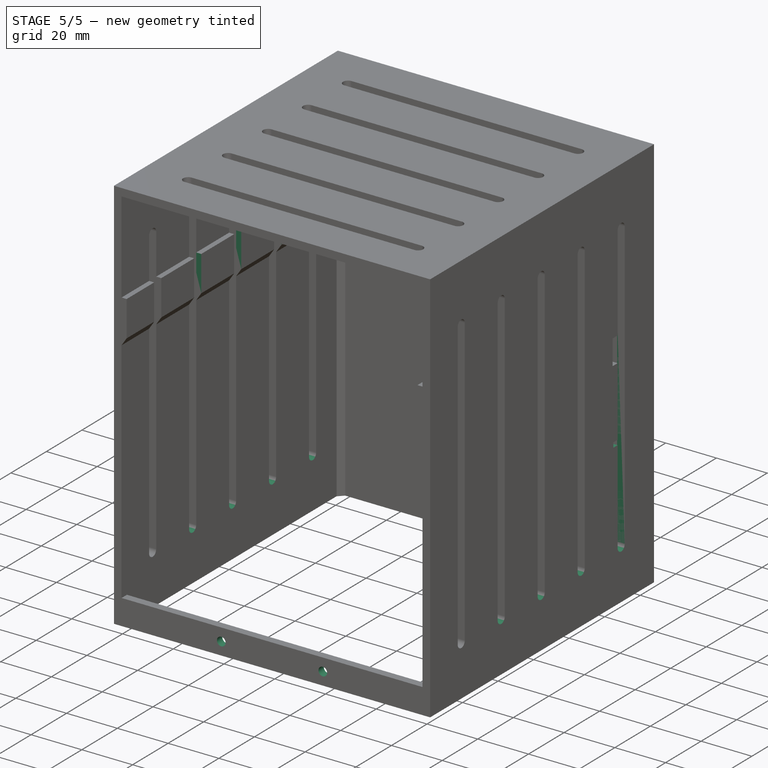
[diagram: stage 5 of 5 — iso view after this stage's code; geometry added in this stage tinted green]
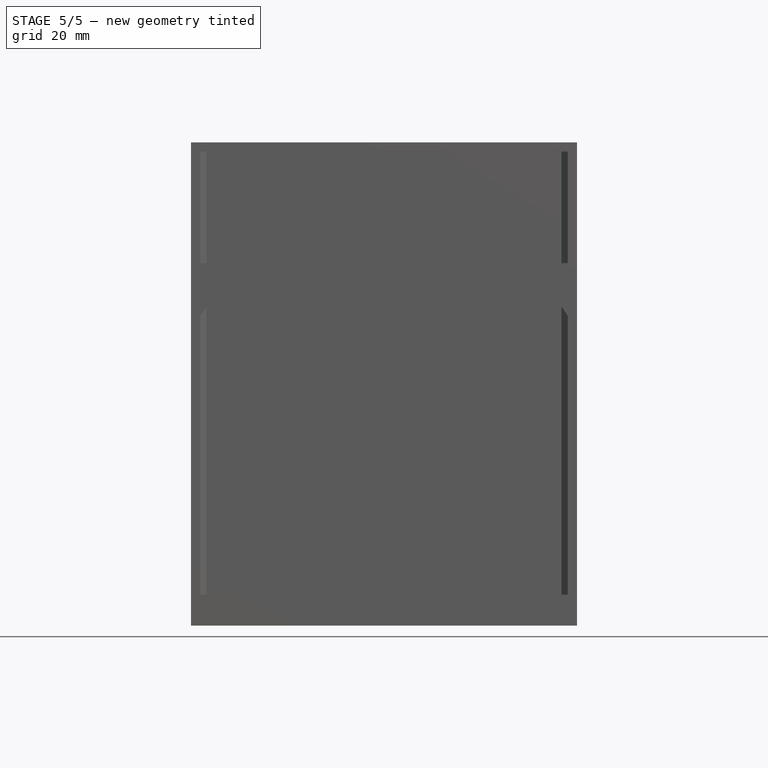
[diagram: stage 5 of 5 — front view after this stage's code; geometry added in this stage tinted green]
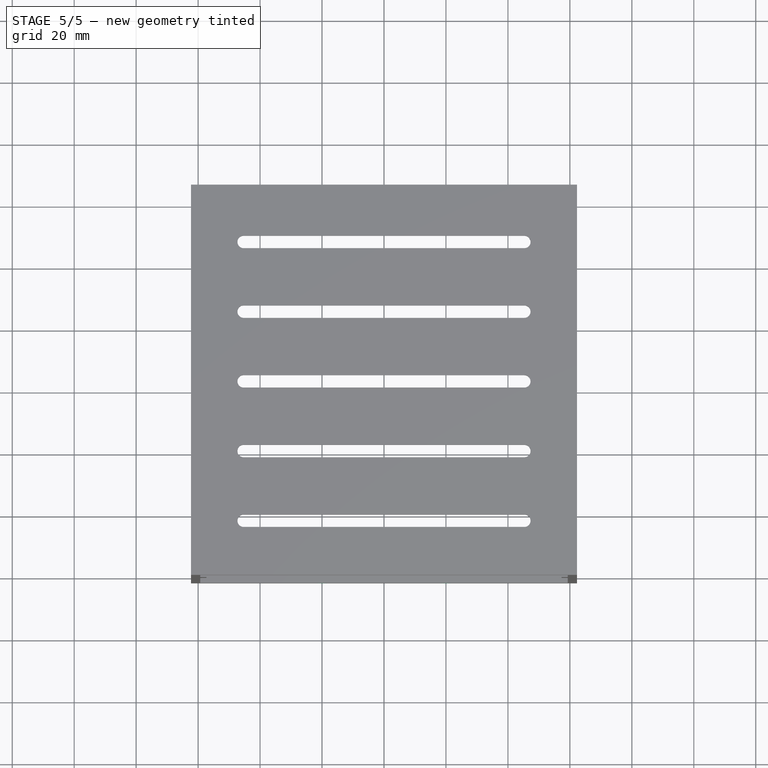
[diagram: stage 5 of 5 — top view after this stage's code; geometry added in this stage tinted green]
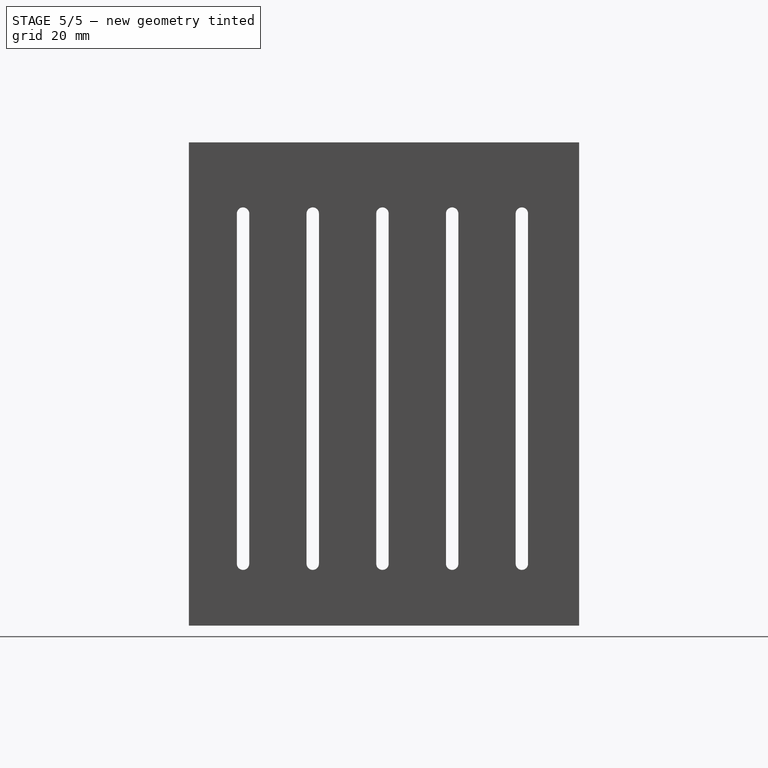
[diagram: stage 5 of 5 — right view after this stage's code; geometry added in this stage tinted green]
FEATURE [PartDesign::LinearPattern] LinearPattern  label="Lower Cover Cooling Slot Base LinearPattern"
  BaseFeature = -> Pocket001
  Direction = -> Sketch009 [H_Axis]
  Length = 90
  Mode = 0
  Occurrences = 5
  Offset = 22.5
  Originals = -> [Pocket001]
  Suppressed = false
  TransformMode = 0
FEATURE [Sketcher::SketchObject] Sketch012  label="Lower Right Case Holes Sketch"
  ArcFitTolerance = 1e-06
  AttachmentSupport = -> [DatumPlane003]
  FullyConstrained = false
  MakeInternals = false
  MapMode = 5
  Placement = pos=(62.3,0,0) rot=(0.57735,0.57735,0.57735;2.0944rad)
  expr: Constraints[18] = <<Monitor Chassis Parameters>>.GSLowerRightSwitchHoleWidth
  expr: Constraints[19] = <<Monitor Chassis Parameters>>.GSLowerRightSwitchHoleLength
  expr: Constraints[8] = <<Monitor Chassis Parameters>>.GSLowerRightSwitchHoleWidth
  expr: Constraints[9] = <<Monitor Chassis Parameters>>.GSLowerRightSwitchHoleLength
  sketch-geometry (8):
    g0: LineSegment StartX=44.8307 StartY=95.724 StartZ=0 EndX=38.8307 EndY=95.724 EndZ=0
    g1: LineSegment StartX=38.8307 StartY=95.724 StartZ=0 EndX=38.8307 EndY=83.724 EndZ=0
    g2: LineSegment StartX=38.8307 StartY=83.724 StartZ=0 EndX=44.8307 EndY=83.724 EndZ=0
    g3: LineSegment StartX=44.8307 StartY=83.724 StartZ=0 EndX=44.8307 EndY=95.724 EndZ=0
    g4: LineSegment StartX=44.8307 StartY=68.6514 StartZ=0 EndX=38.8307 EndY=68.6514 EndZ=0
    g5: LineSegment StartX=38.8307 StartY=68.6514 StartZ=0 EndX=38.8307 EndY=56.6514 EndZ=0
    g6: LineSegment StartX=38.8307 StartY=56.6514 StartZ=0 EndX=44.8307 EndY=56.6514 EndZ=0
    g7: LineSegment StartX=44.8307 StartY=56.6514 StartZ=0 EndX=44.8307 EndY=68.6514 EndZ=0
  constraints (21):
    c: Coincident(g0,g1)
    c: Coincident(g1,g2)
    c: Coincident(g2,g3)
    c: Coincident(g3,g0)
    c: Horizontal(g0)
    c: Horizontal(g2)
    c: Vertical(g1)
    c: Vertical(g3)
    c: DistanceX(g0,g0) = 6
    c: DistanceY(g1,g0) = 12
    c: Coincident(g4,g5)
    c: Coincident(g5,g6)
    c: Coincident(g6,g7)
    c: Coincident(g7,g4)
    c: Horizontal(g4)
    c: Horizontal(g6)
    c: Vertical(g5)
    c: Vertical(g7)
    c: DistanceX(g4,g4) = 6
    c: DistanceY(g6,g4) = 12
    c: Vertical(g4,g1)
FEATURE [PartDesign::Pocket] Pocket
  BaseFeature = -> LinearPattern
  Direction = (-1,0,0)
  Length = 5
  Length2 = 5
  Profile = -> Sketch012
  ReferenceAxis = -> Sketch012 [N_Axis]
  Suppressed = false
  Type = 0
FEATURE [Sketcher::SketchObject] Sketch013  label="Tower Base Attahcment Holes Sketch"
  ArcFitTolerance = 1e-06
  AttachmentSupport = -> [DatumPlane]
  FullyConstrained = true
  MakeInternals = false
  MapMode = 5
  Placement = pos=(0,64.5,-1.43e-14) rot=(1,0,0;1.5708rad)
  expr: Constraints[0] = <<Monitor Chassis Parameters>>.GSM4TappingScrewHoleDiameter
  expr: Constraints[1] = <<Monitor Chassis Parameters>>.GSM4TappingScrewHoleDiameter
  expr: Constraints[3] = 0.5 * <<Monitor Chassis Parameters>>.GSCaseSlotRibHeight
  expr: Constraints[4] = <<Monitor Chassis Parameters>>.GSCaseSlotRibLength - 4 * <<Monitor Chassis Parameters>>.GSCaseSlotRibHeight
  expr: Constraints[5] = 0.5 * <<Monitor Chassis Parameters>>.GSCaseSlotRibLength - 2 * <<Monitor Chassis Parameters>>.GSCaseSlotRibHeight
  sketch-geometry (2):
    g0: Circle CenterX=20 CenterY=5 CenterZ=0 NormalX=0 NormalY=0 NormalZ=1 AngleXU=0 Radius=1.7
    g1: Circle CenterX=-20 CenterY=5 CenterZ=0 NormalX=0 NormalY=0 NormalZ=1 AngleXU=0 Radius=1.7
  constraints (6):
    c: Diameter(g0) = 3.4
    c: Diameter(g1) = 3.4
    c: Horizontal(g0,g1)
    c: DistanceY(g-1,g1) = 5
    c: DistanceX(g1,g0) = 40
    c: DistanceX(g1,g-1) = 20
FEATURE [PartDesign::Pocket] Pocket004  label="Tower Base Attahcment Holes Pocket"
  BaseFeature = -> Pocket
  Direction = (0,1,-2e-16)
  Length = 5
  Length2 = 5
  Profile = -> Sketch013
  ReferenceAxis = -> Sketch013 [N_Axis]
  Reversed = true
  Suppressed = false
  Type = 1
FEATURE [Sketcher::SketchObject] Sketch014  label="Lower Case Back Holes Sketch"
  ArcFitTolerance = 1e-06
  AttachmentSupport = -> [DatumPlane]
  FullyConstrained = false
  MakeInternals = false
  MapMode = 5
  Placement = pos=(0,64.5,-1.43e-14) rot=(1,0,0;1.5708rad)
  expr: Constraints[0] = <<Monitor Chassis Parameters>>.GSLowerBackCoverKnobHoleDiameter
  expr: Constraints[1] = <<Monitor Chassis Parameters>>.GSLowerBackCoverKnobHoleDiameter
  sketch-geometry (3):
    g0: Circle CenterX=-16.3077 CenterY=38.9762 CenterZ=0 NormalX=0 NormalY=0 NormalZ=1 AngleXU=0 Radius=7
    g1: Circle CenterX=-41.7484 CenterY=38.9762 CenterZ=0 NormalX=0 NormalY=0 NormalZ=1 AngleXU=0 Radius=7
    g2: Circle CenterX=-44.9119 CenterY=102.252 CenterZ=0 NormalX=0 NormalY=0 NormalZ=1 AngleXU=0 Radius=2
  constraints (4):
    c: Diameter(g0) = 14
    c: Diameter(g1) = 14
    c: Horizontal(g0,g1)
    c: Diameter(g2) = 4
FEATURE [PartDesign::Pocket] Pocket005  label="Lower Case Back Holes Pocket"
  BaseFeature = -> Pocket004
  Direction = (0,1,-2e-16)
  Length = 5
  Length2 = 5
  Profile = -> Sketch014
  ReferenceAxis = -> Sketch014 [N_Axis]
  Reversed = true
  Suppressed = false
  Type = 0
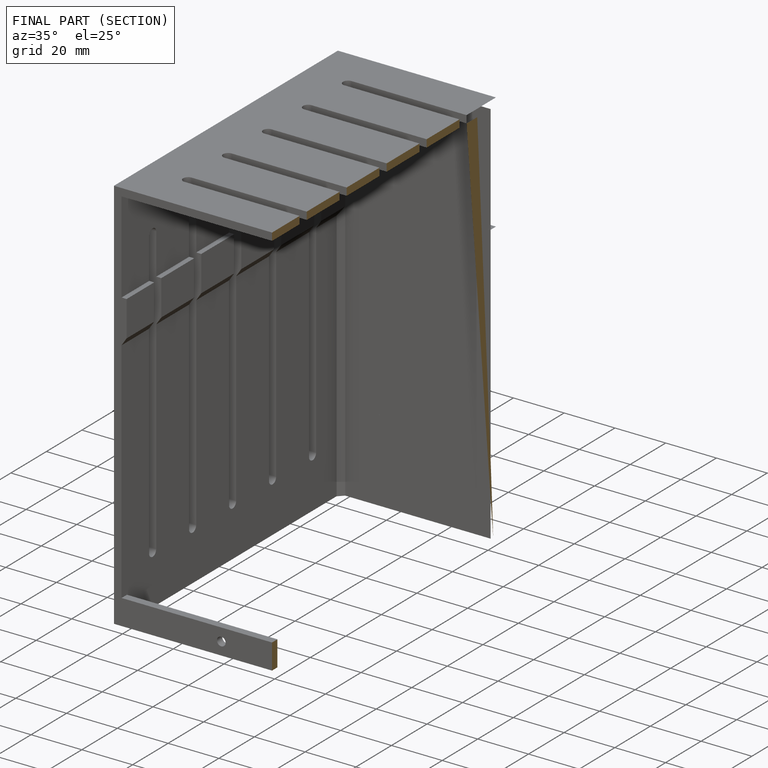
[diagram: finished part — half-section view (interior)]
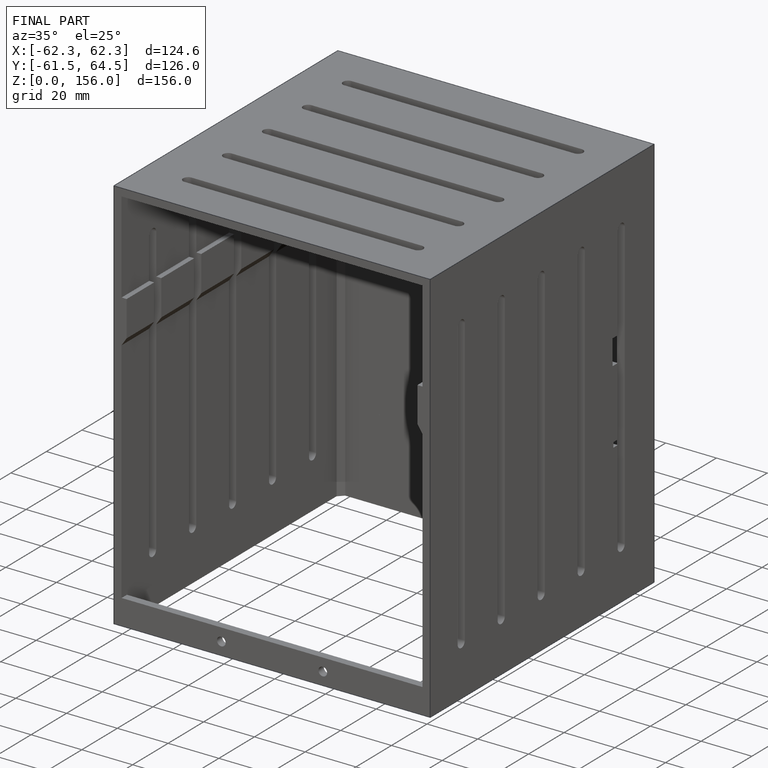
[diagram: finished part — iso view with bounding-box wireframe]
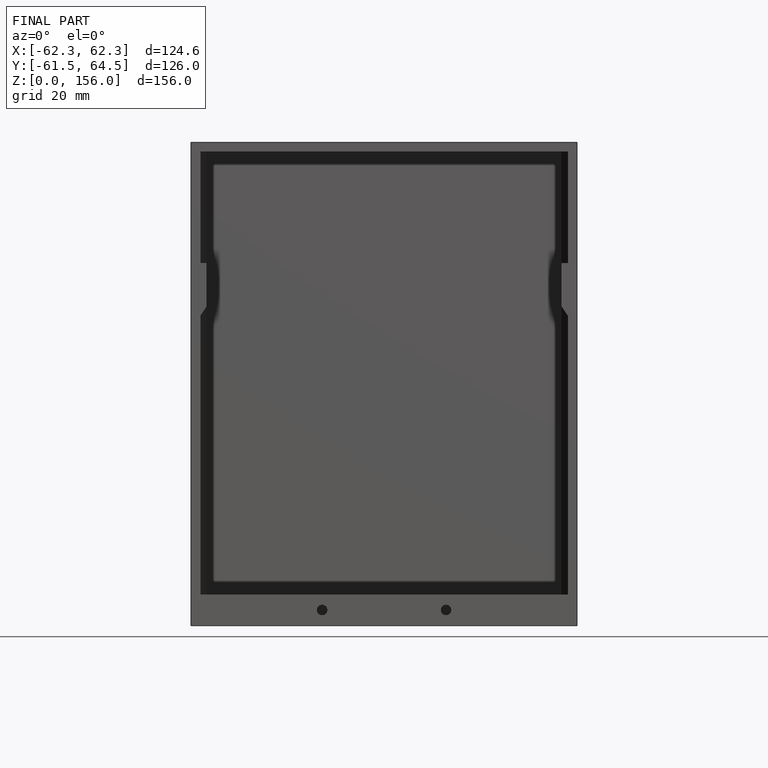
[diagram: finished part — front view with bounding-box wireframe]
